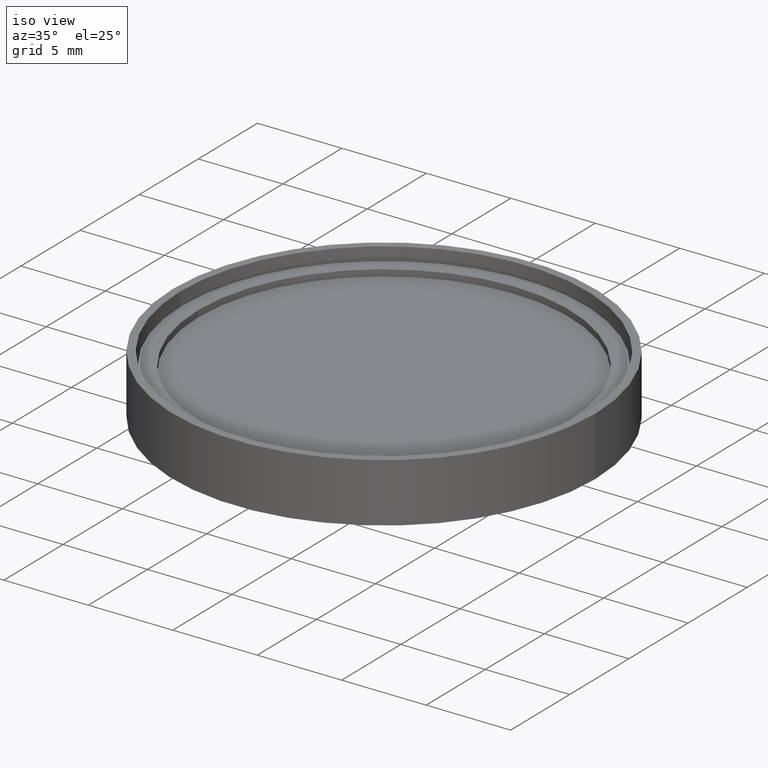
[diagram: clean part render]
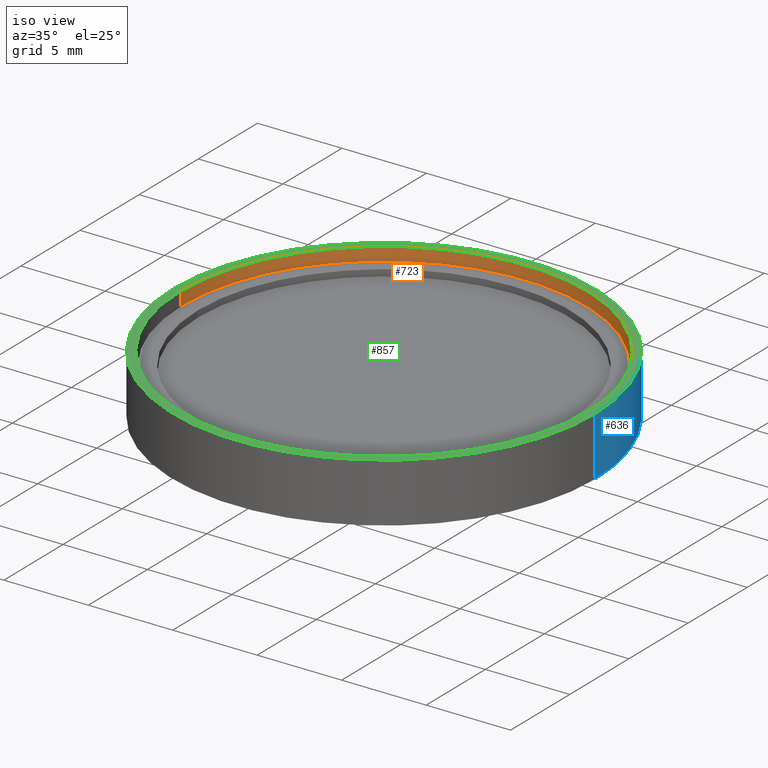
[diagram: same view with three faces highlighted in distinct colors, each labeled with its STEP entity id]
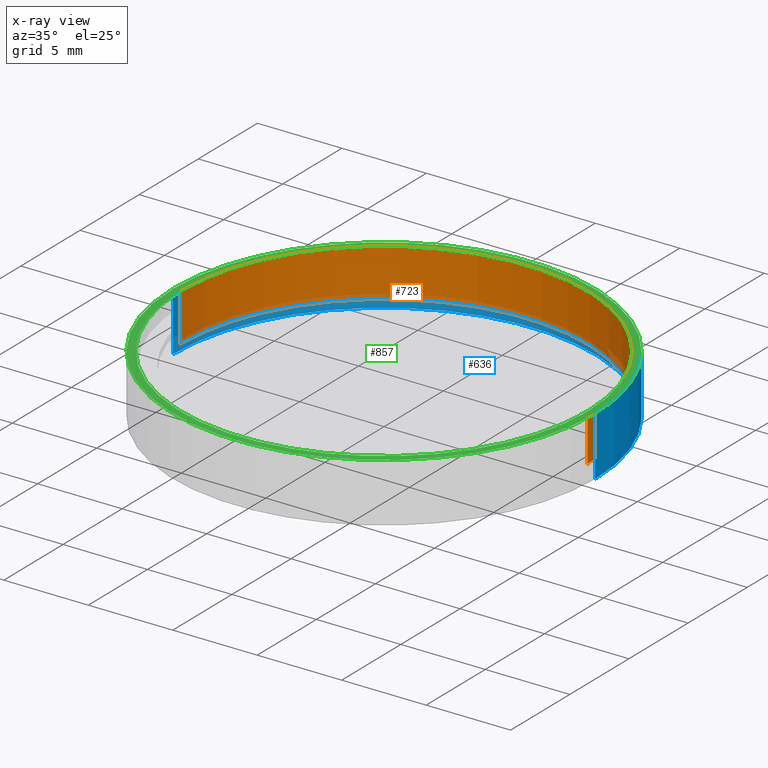
[diagram: x-ray of the same camera — body ghosted, the three highlighted faces saturated]
A machine part, iso view with three faces highlighted in distinct colors.
The next image is the same camera in x-ray (body ghosted, the three faces saturated) — at least one of them is partly hidden behind the body in this view.
Their STEP definitions:

[orange] entity #723 — the highlighted cylindrical surface (partial cylindrical patch) has radius 12.0396 mm, axis along (-0, -0, -1).
#43 = EDGE_CURVE ( 'NONE', #511, #426, #381, .T. ) ;
#74 = DIRECTION ( 'NONE',  ( -1.000000000000000000, 0.0000000000000000000, 0.0000000000000000000 ) ) ;
#89 = AXIS2_PLACEMENT_3D ( 'NONE', #814, #329, #968 ) ;
#140 = ORIENTED_EDGE ( 'NONE', *, *, #164, .T. ) ;
#164 = EDGE_CURVE ( 'NONE', #511, #326, #208, .T. ) ;
#183 = DIRECTION ( 'NONE',  ( 0.0000000000000000000, 0.0000000000000000000, 1.000000000000000000 ) ) ;
#196 = CARTESIAN_POINT ( 'NONE',  ( 12.03960000000000200, 1.474425760301447600E-015, 0.6858000000000000800 ) ) ;
#208 = LINE ( 'NONE', #1021, #822 ) ;
#255 = CIRCLE ( 'NONE', #548, 12.03960000000000200 ) ;
#297 = AXIS2_PLACEMENT_3D ( 'NONE', #1022, #375, #74 ) ;
#322 = EDGE_CURVE ( 'NONE', #518, #326, #255, .T. ) ;
#326 = VERTEX_POINT ( 'NONE', #420 ) ;
#329 = DIRECTION ( 'NONE',  ( -0.0000000000000000000, -0.0000000000000000000, -1.000000000000000000 ) ) ;
#373 = ORIENTED_EDGE ( 'NONE', *, *, #322, .F. ) ;
#375 = DIRECTION ( 'NONE',  ( -0.0000000000000000000, -0.0000000000000000000, -1.000000000000000000 ) ) ;
#381 = CIRCLE ( 'NONE', #89, 12.03960000000000200 ) ;
#420 = CARTESIAN_POINT ( 'NONE',  ( -12.03960000000000200, 0.0000000000000000000, 0.6858000000000000800 ) ) ;
#426 = VERTEX_POINT ( 'NONE', #500 ) ;
#430 = CYLINDRICAL_SURFACE ( 'NONE', #297, 12.03960000000000200 ) ;
#436 = CARTESIAN_POINT ( 'NONE',  ( -12.03960000000000200, 0.0000000000000000000, 3.500000000000000000 ) ) ;
#500 = CARTESIAN_POINT ( 'NONE',  ( 12.03960000000000200, 1.474425760301447600E-015, 3.500000000000000000 ) ) ;
#511 = VERTEX_POINT ( 'NONE', #436 ) ;
#518 = VERTEX_POINT ( 'NONE', #196 ) ;
#537 = DIRECTION ( 'NONE',  ( -0.0000000000000000000, -0.0000000000000000000, -1.000000000000000000 ) ) ;
#548 = AXIS2_PLACEMENT_3D ( 'NONE', #586, #183, #906 ) ;
#568 = FACE_OUTER_BOUND ( 'NONE', #890, .T. ) ;
#586 = CARTESIAN_POINT ( 'NONE',  ( 0.0000000000000000000, 0.0000000000000000000, 0.6858000000000000800 ) ) ;
#656 = EDGE_CURVE ( 'NONE', #426, #518, #1013, .T. ) ;
#658 = ORIENTED_EDGE ( 'NONE', *, *, #43, .F. ) ;
#723 = ADVANCED_FACE ( 'NONE', ( #568 ), #430, .F. ) ;
#774 = CARTESIAN_POINT ( 'NONE',  ( 12.03960000000000200, 1.474425760301447600E-015, 0.0000000000000000000 ) ) ;
#781 = VECTOR ( 'NONE', #863, 1000.000000000000000 ) ;
#814 = CARTESIAN_POINT ( 'NONE',  ( 0.0000000000000000000, 0.0000000000000000000, 3.500000000000000000 ) ) ;
#822 = VECTOR ( 'NONE', #537, 1000.000000000000000 ) ;
#863 = DIRECTION ( 'NONE',  ( -0.0000000000000000000, -0.0000000000000000000, -1.000000000000000000 ) ) ;
#876 = ORIENTED_EDGE ( 'NONE', *, *, #656, .F. ) ;
#890 = EDGE_LOOP ( 'NONE', ( #876, #658, #140, #373 ) ) ;
#906 = DIRECTION ( 'NONE',  ( -1.000000000000000000, 0.0000000000000000000, 0.0000000000000000000 ) ) ;
#968 = DIRECTION ( 'NONE',  ( -1.000000000000000000, 0.0000000000000000000, 0.0000000000000000000 ) ) ;
#1013 = LINE ( 'NONE', #774, #781 ) ;
#1021 = CARTESIAN_POINT ( 'NONE',  ( -12.03960000000000200, 0.0000000000000000000, 0.0000000000000000000 ) ) ;
#1022 = CARTESIAN_POINT ( 'NONE',  ( 0.0000000000000000000, 0.0000000000000000000, 0.0000000000000000000 ) ) ;

[blue] entity #636 — the highlighted cylindrical surface (partial cylindrical patch) has radius 12.4968 mm, axis along (-0, -0, -1).
#8 = ORIENTED_EDGE ( 'NONE', *, *, #262, .T. ) ;
#26 = VERTEX_POINT ( 'NONE', #303 ) ;
#75 = DIRECTION ( 'NONE',  ( -1.000000000000000000, 0.0000000000000000000, 0.0000000000000000000 ) ) ;
#79 = CARTESIAN_POINT ( 'NONE',  ( -12.49679999999999900, 0.0000000000000000000, 3.500000000000000000 ) ) ;
#96 = EDGE_CURVE ( 'NONE', #178, #539, #784, .T. ) ;
#138 = LINE ( 'NONE', #879, #542 ) ;
#178 = VERTEX_POINT ( 'NONE', #384 ) ;
#194 = CARTESIAN_POINT ( 'NONE',  ( -12.49679999999999900, 0.0000000000000000000, 0.0000000000000000000 ) ) ;
#213 = DIRECTION ( 'NONE',  ( -0.0000000000000000000, -0.0000000000000000000, -1.000000000000000000 ) ) ;
#231 = CARTESIAN_POINT ( 'NONE',  ( 0.0000000000000000000, 0.0000000000000000000, 0.0000000000000000000 ) ) ;
#262 = EDGE_CURVE ( 'NONE', #768, #26, #925, .T. ) ;
#280 = ORIENTED_EDGE ( 'NONE', *, *, #308, .F. ) ;
#303 = CARTESIAN_POINT ( 'NONE',  ( 12.49679999999999900, 1.530416611958464300E-015, 3.500000000000000000 ) ) ;
#308 = EDGE_CURVE ( 'NONE', #768, #539, #612, .T. ) ;
#384 = CARTESIAN_POINT ( 'NONE',  ( 12.49679999999999900, 1.530416611958464300E-015, 0.0000000000000000000 ) ) ;
#387 = CARTESIAN_POINT ( 'NONE',  ( 0.0000000000000000000, 0.0000000000000000000, 3.500000000000000000 ) ) ;
#431 = AXIS2_PLACEMENT_3D ( 'NONE', #231, #552, #75 ) ;
#497 = CARTESIAN_POINT ( 'NONE',  ( -12.49679999999999900, 0.0000000000000000000, 0.0000000000000000000 ) ) ;
#506 = DIRECTION ( 'NONE',  ( -0.0000000000000000000, -0.0000000000000000000, -1.000000000000000000 ) ) ;
#539 = VERTEX_POINT ( 'NONE', #194 ) ;
#542 = VECTOR ( 'NONE', #951, 1000.000000000000000 ) ;
#552 = DIRECTION ( 'NONE',  ( 0.0000000000000000000, 0.0000000000000000000, 1.000000000000000000 ) ) ;
#612 = LINE ( 'NONE', #497, #846 ) ;
#616 = CARTESIAN_POINT ( 'NONE',  ( 0.0000000000000000000, 0.0000000000000000000, 0.0000000000000000000 ) ) ;
#634 = DIRECTION ( 'NONE',  ( -1.000000000000000000, 0.0000000000000000000, 0.0000000000000000000 ) ) ;
#636 = ADVANCED_FACE ( 'NONE', ( #661 ), #742, .T. ) ;
#661 = FACE_OUTER_BOUND ( 'NONE', #729, .T. ) ;
#705 = ORIENTED_EDGE ( 'NONE', *, *, #773, .T. ) ;
#729 = EDGE_LOOP ( 'NONE', ( #8, #705, #900, #280 ) ) ;
#742 = CYLINDRICAL_SURFACE ( 'NONE', #924, 12.49679999999999900 ) ;
#768 = VERTEX_POINT ( 'NONE', #79 ) ;
#773 = EDGE_CURVE ( 'NONE', #26, #178, #138, .T. ) ;
#783 = DIRECTION ( 'NONE',  ( -1.000000000000000000, 0.0000000000000000000, 0.0000000000000000000 ) ) ;
#784 = CIRCLE ( 'NONE', #431, 12.49679999999999900 ) ;
#846 = VECTOR ( 'NONE', #506, 1000.000000000000000 ) ;
#879 = CARTESIAN_POINT ( 'NONE',  ( 12.49679999999999900, 1.530416611958464300E-015, 0.0000000000000000000 ) ) ;
#900 = ORIENTED_EDGE ( 'NONE', *, *, #96, .T. ) ;
#924 = AXIS2_PLACEMENT_3D ( 'NONE', #616, #213, #783 ) ;
#925 = CIRCLE ( 'NONE', #1032, 12.49679999999999900 ) ;
#951 = DIRECTION ( 'NONE',  ( -0.0000000000000000000, -0.0000000000000000000, -1.000000000000000000 ) ) ;
#1032 = AXIS2_PLACEMENT_3D ( 'NONE', #387, #1033, #634 ) ;
#1033 = DIRECTION ( 'NONE',  ( -0.0000000000000000000, -0.0000000000000000000, -1.000000000000000000 ) ) ;

[green] entity #857 — the highlighted planar face has unit normal (0, 0, 1).
#26 = VERTEX_POINT ( 'NONE', #303 ) ;
#43 = EDGE_CURVE ( 'NONE', #511, #426, #381, .T. ) ;
#50 = FACE_OUTER_BOUND ( 'NONE', #287, .T. ) ;
#57 = DIRECTION ( 'NONE',  ( -0.0000000000000000000, -0.0000000000000000000, -1.000000000000000000 ) ) ;
#60 = AXIS2_PLACEMENT_3D ( 'NONE', #841, #445, #360 ) ;
#79 = CARTESIAN_POINT ( 'NONE',  ( -12.49679999999999900, 0.0000000000000000000, 3.500000000000000000 ) ) ;
#89 = AXIS2_PLACEMENT_3D ( 'NONE', #814, #329, #968 ) ;
#105 = CIRCLE ( 'NONE', #227, 12.03960000000000200 ) ;
#135 = EDGE_LOOP ( 'NONE', ( #590, #392 ) ) ;
#227 = AXIS2_PLACEMENT_3D ( 'NONE', #788, #57, #859 ) ;
#262 = EDGE_CURVE ( 'NONE', #768, #26, #925, .T. ) ;
#287 = EDGE_LOOP ( 'NONE', ( #938, #975 ) ) ;
#303 = CARTESIAN_POINT ( 'NONE',  ( 12.49679999999999900, 1.530416611958464300E-015, 3.500000000000000000 ) ) ;
#329 = DIRECTION ( 'NONE',  ( -0.0000000000000000000, -0.0000000000000000000, -1.000000000000000000 ) ) ;
#360 = DIRECTION ( 'NONE',  ( 1.000000000000000000, 0.0000000000000000000, -0.0000000000000000000 ) ) ;
#381 = CIRCLE ( 'NONE', #89, 12.03960000000000200 ) ;
#387 = CARTESIAN_POINT ( 'NONE',  ( 0.0000000000000000000, 0.0000000000000000000, 3.500000000000000000 ) ) ;
#392 = ORIENTED_EDGE ( 'NONE', *, *, #672, .T. ) ;
#426 = VERTEX_POINT ( 'NONE', #500 ) ;
#436 = CARTESIAN_POINT ( 'NONE',  ( -12.03960000000000200, 0.0000000000000000000, 3.500000000000000000 ) ) ;
#445 = DIRECTION ( 'NONE',  ( 0.0000000000000000000, 0.0000000000000000000, 1.000000000000000000 ) ) ;
#471 = CARTESIAN_POINT ( 'NONE',  ( 0.0000000000000000000, 0.0000000000000000000, 3.500000000000000000 ) ) ;
#500 = CARTESIAN_POINT ( 'NONE',  ( 12.03960000000000200, 1.474425760301447600E-015, 3.500000000000000000 ) ) ;
#511 = VERTEX_POINT ( 'NONE', #436 ) ;
#516 = PLANE ( 'NONE',  #60 ) ;
#564 = AXIS2_PLACEMENT_3D ( 'NONE', #471, #801, #922 ) ;
#590 = ORIENTED_EDGE ( 'NONE', *, *, #43, .T. ) ;
#634 = DIRECTION ( 'NONE',  ( -1.000000000000000000, 0.0000000000000000000, 0.0000000000000000000 ) ) ;
#659 = FACE_BOUND ( 'NONE', #135, .T. ) ;
#672 = EDGE_CURVE ( 'NONE', #426, #511, #105, .T. ) ;
#684 = CIRCLE ( 'NONE', #564, 12.49679999999999900 ) ;
#768 = VERTEX_POINT ( 'NONE', #79 ) ;
#788 = CARTESIAN_POINT ( 'NONE',  ( 0.0000000000000000000, 0.0000000000000000000, 3.500000000000000000 ) ) ;
#801 = DIRECTION ( 'NONE',  ( -0.0000000000000000000, -0.0000000000000000000, -1.000000000000000000 ) ) ;
#807 = EDGE_CURVE ( 'NONE', #26, #768, #684, .T. ) ;
#814 = CARTESIAN_POINT ( 'NONE',  ( 0.0000000000000000000, 0.0000000000000000000, 3.500000000000000000 ) ) ;
#841 = CARTESIAN_POINT ( 'NONE',  ( 0.0000000000000000000, 12.03960000000000200, 3.500000000000000000 ) ) ;
#857 = ADVANCED_FACE ( 'NONE', ( #50, #659 ), #516, .T. ) ;
#859 = DIRECTION ( 'NONE',  ( -1.000000000000000000, 0.0000000000000000000, 0.0000000000000000000 ) ) ;
#922 = DIRECTION ( 'NONE',  ( -1.000000000000000000, 0.0000000000000000000, 0.0000000000000000000 ) ) ;
#925 = CIRCLE ( 'NONE', #1032, 12.49679999999999900 ) ;
#938 = ORIENTED_EDGE ( 'NONE', *, *, #262, .F. ) ;
#968 = DIRECTION ( 'NONE',  ( -1.000000000000000000, 0.0000000000000000000, 0.0000000000000000000 ) ) ;
#975 = ORIENTED_EDGE ( 'NONE', *, *, #807, .F. ) ;
#1032 = AXIS2_PLACEMENT_3D ( 'NONE', #387, #1033, #634 ) ;
#1033 = DIRECTION ( 'NONE',  ( -0.0000000000000000000, -0.0000000000000000000, -1.000000000000000000 ) ) ;